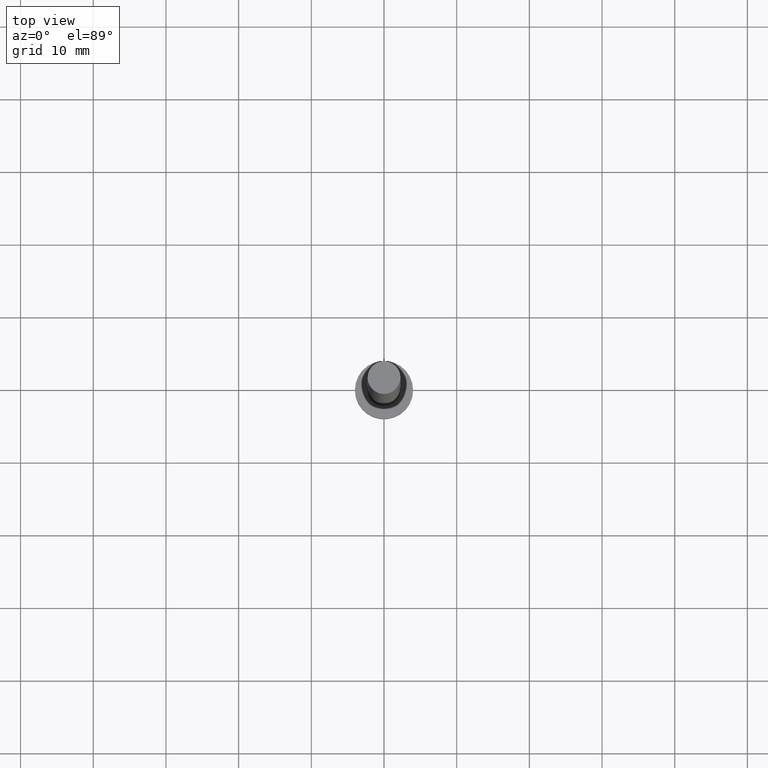
[diagram: clean part render]
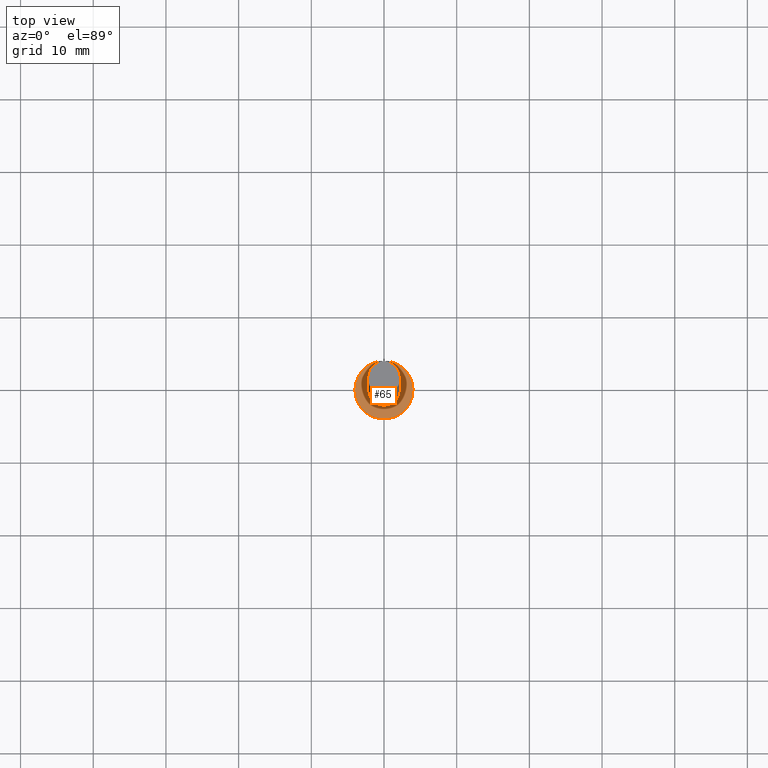
[diagram: same view with one face highlighted and labeled with its STEP entity id]
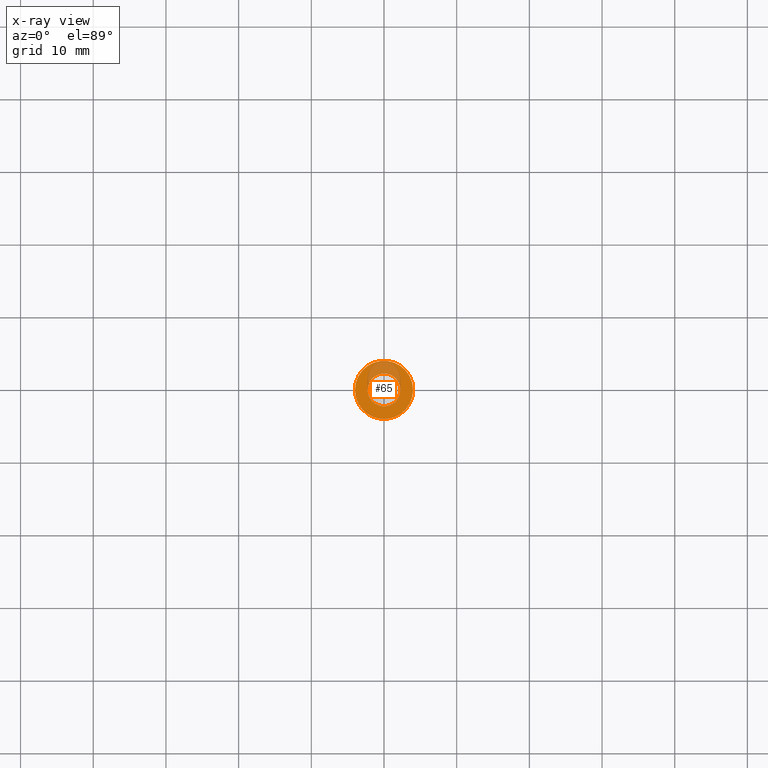
[diagram: x-ray of the same camera — body ghosted, the highlighted face saturated]
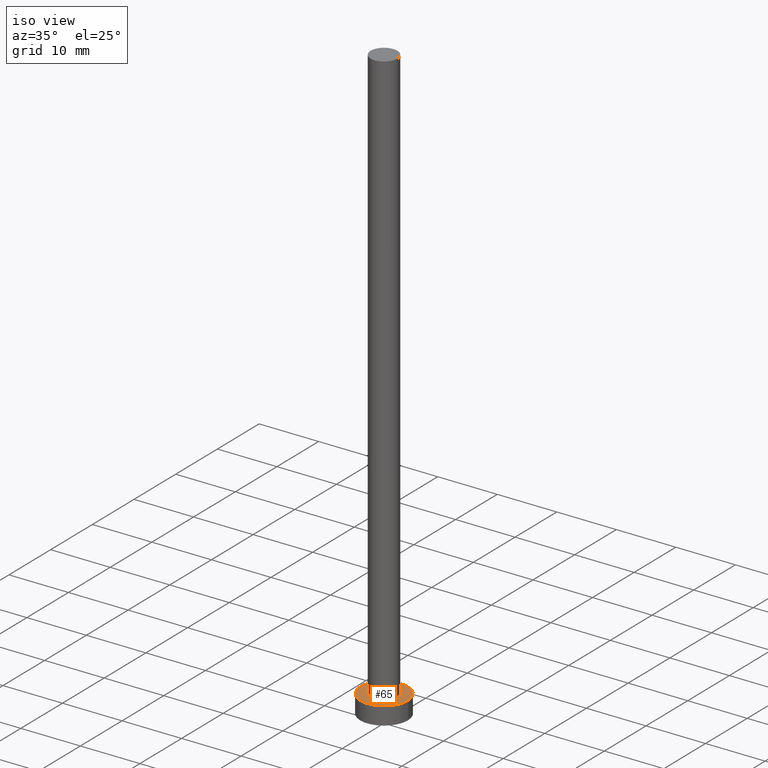
[diagram: same view with one face highlighted and labeled with its STEP entity id]
A machine part, top view. The second image highlights one B-rep face of the part: STEP entity #65.
The next image is the same camera in x-ray: the body ghosted, the highlighted face saturated — about 23% of this face is hidden behind the body in this view.
A second angle (iso view) of the same face is appended — the face is thin or edge-on in the first view.
In plain terms, the highlighted planar face has unit normal (0, 0, 1).
Its self-contained STEP definition (entity closure, byte-faithful):
#20 = EDGE_LOOP ( 'NONE', ( #119, #21 ) ) ;
#21 = ORIENTED_EDGE ( 'NONE', *, *, #89, .F. ) ;
#22 = DIRECTION ( 'NONE',  ( 0.000000000000000000, 0.000000000000000000, 1.000000000000000000 ) ) ;
#30 = CARTESIAN_POINT ( 'NONE',  ( 0.000000000000000000, 0.000000000000000000, 3.000000000000000000 ) ) ;
#31 = DIRECTION ( 'NONE',  ( 0.000000000000000000, 0.000000000000000000, 1.000000000000000000 ) ) ;
#33 = EDGE_CURVE ( 'NONE', #170, #131, #155, .T. ) ;
#35 = CIRCLE ( 'NONE', #88, 4.000000000000000000 ) ;
#38 = CIRCLE ( 'NONE', #61, 2.250000000000000000 ) ;
#39 = AXIS2_PLACEMENT_3D ( 'NONE', #240, #22, #84 ) ;
#48 = CARTESIAN_POINT ( 'NONE',  ( 0.000000000000000000, 0.000000000000000000, 3.000000000000000000 ) ) ;
#55 = FACE_BOUND ( 'NONE', #20, .T. ) ;
#60 = VERTEX_POINT ( 'NONE', #111 ) ;
#61 = AXIS2_PLACEMENT_3D ( 'NONE', #48, #145, #229 ) ;
#64 = CARTESIAN_POINT ( 'NONE',  ( 4.000000000000000000, 4.898587196589412829E-16, 3.000000000000000000 ) ) ;
#65 = ADVANCED_FACE ( 'NONE', ( #55, #90 ), #168, .T. ) ;
#66 = CARTESIAN_POINT ( 'NONE',  ( 0.000000000000000000, 0.000000000000000000, 3.000000000000000000 ) ) ;
#70 = CARTESIAN_POINT ( 'NONE',  ( 0.000000000000000000, 0.000000000000000000, 3.000000000000000000 ) ) ;
#83 = DIRECTION ( 'NONE',  ( 0.000000000000000000, 0.000000000000000000, 1.000000000000000000 ) ) ;
#84 = DIRECTION ( 'NONE',  ( 1.000000000000000000, 0.000000000000000000, 0.000000000000000000 ) ) ;
#85 = DIRECTION ( 'NONE',  ( 0.000000000000000000, 0.000000000000000000, 1.000000000000000000 ) ) ;
#88 = AXIS2_PLACEMENT_3D ( 'NONE', #66, #83, #202 ) ;
#89 = EDGE_CURVE ( 'NONE', #131, #170, #38, .T. ) ;
#90 = FACE_OUTER_BOUND ( 'NONE', #156, .T. ) ;
#109 = DIRECTION ( 'NONE',  ( 1.000000000000000000, 0.000000000000000000, -0.000000000000000000 ) ) ;
#111 = CARTESIAN_POINT ( 'NONE',  ( -4.000000000000000000, 0.000000000000000000, 3.000000000000000000 ) ) ;
#119 = ORIENTED_EDGE ( 'NONE', *, *, #33, .F. ) ;
#120 = CARTESIAN_POINT ( 'NONE',  ( -2.250000000000000000, 0.000000000000000000, 3.000000000000000000 ) ) ;
#123 = ORIENTED_EDGE ( 'NONE', *, *, #150, .T. ) ;
#131 = VERTEX_POINT ( 'NONE', #151 ) ;
#135 = VERTEX_POINT ( 'NONE', #64 ) ;
#140 = CIRCLE ( 'NONE', #39, 4.000000000000000000 ) ;
#145 = DIRECTION ( 'NONE',  ( 0.000000000000000000, 0.000000000000000000, 1.000000000000000000 ) ) ;
#150 = EDGE_CURVE ( 'NONE', #60, #135, #140, .T. ) ;
#151 = CARTESIAN_POINT ( 'NONE',  ( 2.250000000000000000, 2.755455298081543792E-16, 3.000000000000000000 ) ) ;
#155 = CIRCLE ( 'NONE', #253, 2.250000000000000000 ) ;
#156 = EDGE_LOOP ( 'NONE', ( #123, #214 ) ) ;
#162 = DIRECTION ( 'NONE',  ( 1.000000000000000000, 0.000000000000000000, 0.000000000000000000 ) ) ;
#168 = PLANE ( 'NONE',  #199 ) ;
#170 = VERTEX_POINT ( 'NONE', #120 ) ;
#199 = AXIS2_PLACEMENT_3D ( 'NONE', #70, #31, #109 ) ;
#202 = DIRECTION ( 'NONE',  ( 1.000000000000000000, 0.000000000000000000, 0.000000000000000000 ) ) ;
#213 = EDGE_CURVE ( 'NONE', #135, #60, #35, .T. ) ;
#214 = ORIENTED_EDGE ( 'NONE', *, *, #213, .T. ) ;
#229 = DIRECTION ( 'NONE',  ( 1.000000000000000000, 0.000000000000000000, 0.000000000000000000 ) ) ;
#240 = CARTESIAN_POINT ( 'NONE',  ( 0.000000000000000000, 0.000000000000000000, 3.000000000000000000 ) ) ;
#253 = AXIS2_PLACEMENT_3D ( 'NONE', #30, #85, #162 ) ;